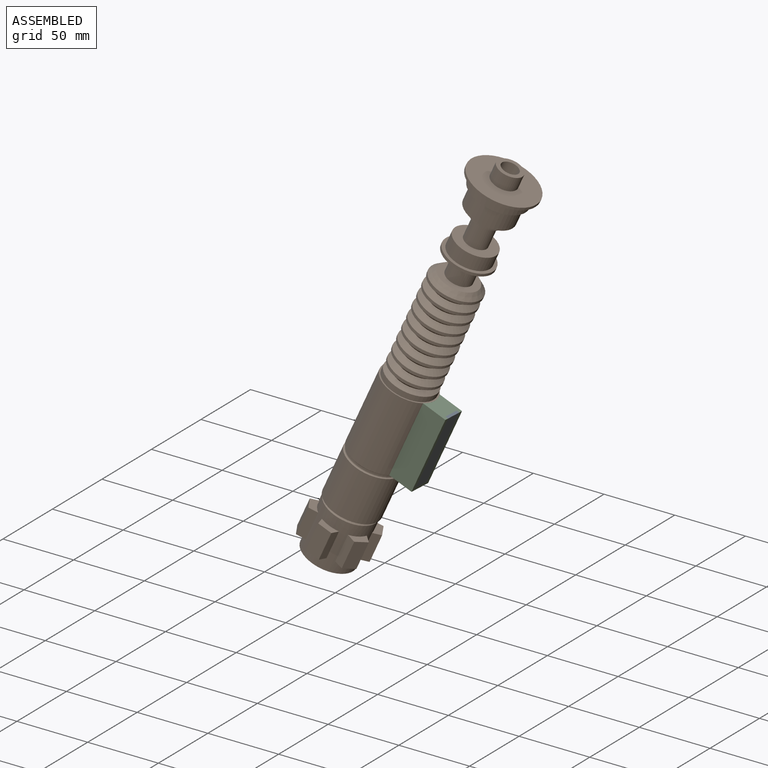
[diagram: assembled view]
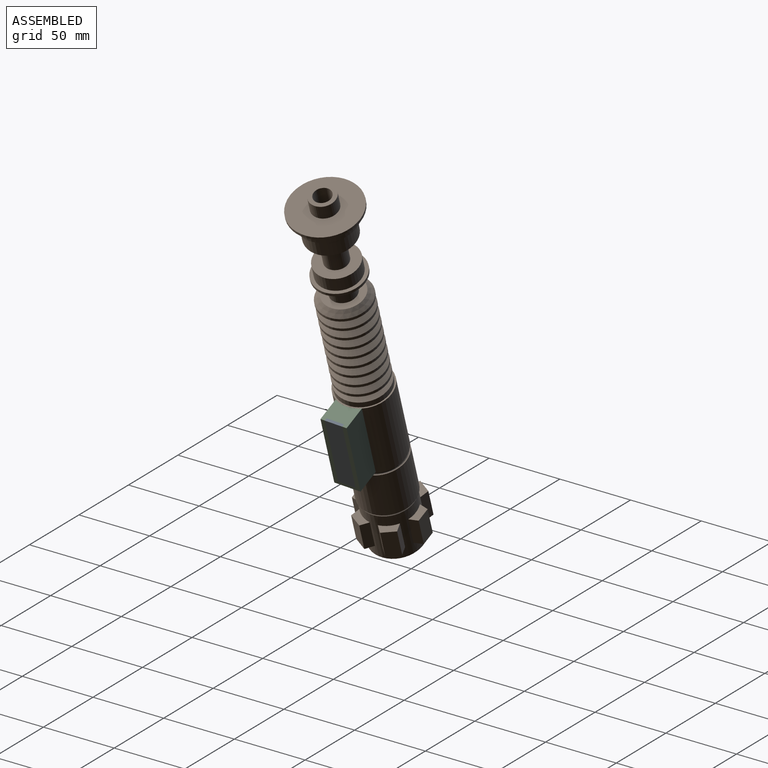
[diagram: assembled view, second angle]
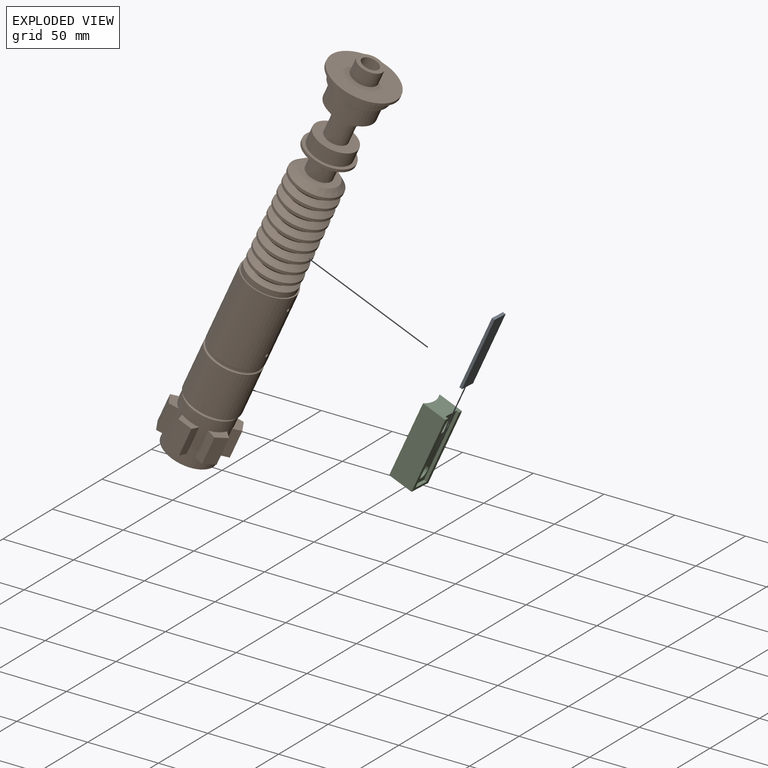
[diagram: exploded view]
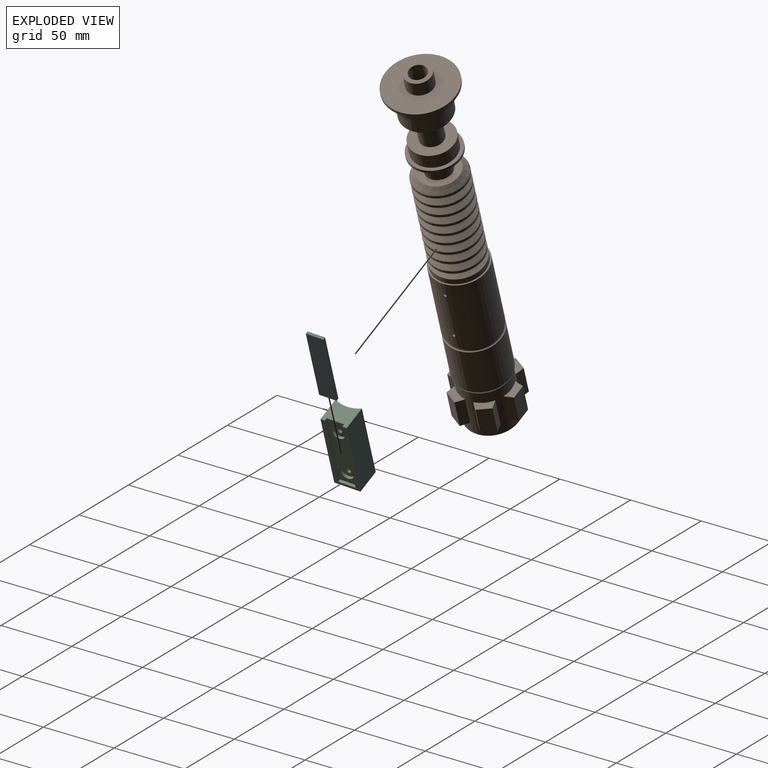
[diagram: exploded view, second angle]
ASSEMBLY  parts=3 mates=5
PART A: 6 faces, bbox 52x2x12 mm
  f0: plane 12x2mm, normal (-1,0,0), area 24mm2, adj f1,f3,f4,f5
  f1: plane 52x2mm, normal (0,0,1), area 104mm2, adj f0,f2,f4,f5
  f2: plane 12x2mm, normal (1,0,0), area 24mm2, adj f1,f3,f4,f5
  f3: plane 52x2mm, normal (0,0,-1), area 104mm2, adj f0,f2,f4,f5
  f4: plane 52x12mm, normal (0,1,0), area 624mm2, adj f0,f1,f2,f3
  f5: plane 52x12mm, normal (0,-1,0), area 624mm2, adj f0,f1,f2,f3
PART B: 96 faces, bbox 48x48x290 mm
  f0: torus R=19mm, axis (0,0,1), area 181.2mm2, adj f2,f5
  f1: torus R=19mm, axis (0,0,-1), area 181.2mm2, adj f5,f51
  f2: cylinder r=19mm len=38mm, axis (0,0,1), area 4058.9mm2, adj f0,f95
  f3: cone r=16mm half-angle=45deg, axis (0,0,-1), area 302.1mm2, adj f4,f95
  f4: cylinder r=18mm len=36mm, axis (0,0,1), area 2475.4mm2, adj f3,f70,f71,f72,f73,f74,f75,f76
  f5: cylinder r=18mm len=36mm, axis (0,0,1), area 113.1mm2, adj f0,f1
  f6: cylinder r=6mm len=34mm, axis (0,0,1), area 1281.8mm2, adj f7,f63
  f7: cone r=6mm half-angle=59deg, axis (0,0,1), area 131.9mm2, adj f6
  f8: cylinder r=1.25mm len=7.5mm, axis (1,0,0), area 58.9mm2, adj f9,f51
  f9: cone r=1.25mm half-angle=59deg, axis (1,0,0), area 5.7mm2, adj f8
  f10: cylinder r=1.25mm len=7.5mm, axis (1,0,0), area 58.9mm2, adj f11,f51
  f11: cone r=1.25mm half-angle=59deg, axis (1,0,0), area 5.7mm2, adj f10
  f12: cylinder r=9mm len=18mm, axis (0,0,1), area 565.5mm2, adj f62,f63
  f13: cylinder r=24mm len=48mm, axis (0,0,-1), area 301.6mm2, adj f61,f62
  f14: cylinder r=20mm len=40mm, axis (0,0,1), area 879.6mm2, adj f60,f61
  f15: cylinder r=17mm len=34mm, axis (0,0,1), area 1495.4mm2, adj f59,f60
  f16: cylinder r=11mm len=22mm, axis (0,0,1), area 345.6mm2, adj f58,f59
  f17: cylinder r=8mm len=17mm, axis (0,0,1), area 854.5mm2, adj f57,f58
  f18: cylinder r=15mm len=30mm, axis (0,0,1), area 942.5mm2, adj f56,f57
  f19: cylinder r=17.5mm len=35mm, axis (0,0,1), area 219.9mm2, adj f55,f56
  f20: cylinder r=11mm len=22mm, axis (0,0,1), area 138.2mm2, adj f54,f55
  f21: cylinder r=9mm len=18mm, axis (0,0,1), area 735.1mm2, adj f53,f54
  f22: cone r=14mm half-angle=45deg, axis (0,0,-1), area 568.7mm2, adj f23,f53
  f23: cylinder r=18mm len=36mm, axis (0,0,1), area 226.2mm2, adj f22,f24
  f24: cone r=18mm half-angle=53.1deg, axis (0,0,1), area 502.7mm2, adj f23,f25
  f25: cone r=14mm half-angle=53.1deg, axis (0,0,-1), area 502.7mm2, adj f24,f26
  f26: cylinder r=18mm len=36mm, axis (0,0,1), area 226.2mm2, adj f25,f27
  f27: cone r=18mm half-angle=53.1deg, axis (0,0,1), area 502.7mm2, adj f26,f28
  f28: cone r=14mm half-angle=53.1deg, axis (0,0,-1), area 502.7mm2, adj f27,f29
  f29: cylinder r=18mm len=36mm, axis (0,0,1), area 226.2mm2, adj f28,f30
  f30: cone r=18mm half-angle=53.1deg, axis (0,0,1), area 502.7mm2, adj f29,f31
  f31: cone r=14mm half-angle=53.1deg, axis (0,0,-1), area 502.7mm2, adj f30,f32
  f32: cylinder r=18mm len=36mm, axis (0,0,1), area 226.2mm2, adj f31,f33
  f33: cone r=18mm half-angle=53.1deg, axis (0,0,1), area 502.7mm2, adj f32,f34
  f34: cone r=14mm half-angle=53.1deg, axis (0,0,-1), area 502.7mm2, adj f33,f35
  f35: cylinder r=18mm len=36mm, axis (0,0,1), area 226.2mm2, adj f34,f36
  f36: cone r=18mm half-angle=53.1deg, axis (0,0,1), area 502.7mm2, adj f35,f37
  f37: cone r=14mm half-angle=53.1deg, axis (0,0,-1), area 502.7mm2, adj f36,f38
  f38: cylinder r=18mm len=36mm, axis (0,0,1), area 226.2mm2, adj f37,f39
  f39: cone r=18mm half-angle=53.1deg, axis (0,0,1), area 502.7mm2, adj f38,f40
  f40: cone r=14mm half-angle=53.1deg, axis (0,0,-1), area 502.7mm2, adj f39,f41
  f41: cylinder r=18mm len=36mm, axis (0,0,1), area 226.2mm2, adj f40,f42
  f42: cone r=18mm half-angle=53.1deg, axis (0,0,1), area 502.7mm2, adj f41,f43
  f43: cone r=14mm half-angle=53.1deg, axis (0,0,-1), area 502.7mm2, adj f42,f44
  f44: cylinder r=18mm len=36mm, axis (0,0,1), area 226.2mm2, adj f43,f45
  f45: cone r=18mm half-angle=53.1deg, axis (0,0,1), area 502.7mm2, adj f44,f46
  f46: cone r=14mm half-angle=53.1deg, axis (0,0,-1), area 502.7mm2, adj f45,f47
  f47: cylinder r=18mm len=36mm, axis (0,0,1), area 226.2mm2, adj f46,f48
  f48: cone r=18mm half-angle=53.1deg, axis (0,0,1), area 502.7mm2, adj f47,f49
  f49: cone r=14mm half-angle=63.4deg, axis (0,0,-1), area 449.6mm2, adj f48,f50
  f50: cylinder r=18mm len=36mm, axis (0,0,1), area 452.4mm2, adj f49,f52
  f51: cylinder r=19mm len=54mm, axis (0,0,1), area 6436.8mm2, adj f1,f8,f10,f52
  f52: plane 38x38mm, normal (0,0,1), area 116.2mm2, adj f50,f51
  f53: plane 28x28mm, normal (0,0,1), area 361.3mm2, adj f21,f22
  f54: plane 22x22mm, normal (0,0,-1), area 125.7mm2, adj f20,f21
  f55: plane 35x35mm, normal (0,0,-1), area 582mm2, adj f19,f20
  f56: plane 35x35mm, normal (0,0,1), area 255.3mm2, adj f18,f19
  f57: plane 30x30mm, normal (0,0,1), area 505.8mm2, adj f17,f18
  f58: plane 22x22mm, normal (0,0,-1), area 179.1mm2, adj f16,f17
  f59: plane 34x34mm, normal (0,0,-1), area 527.8mm2, adj f15,f16
  f60: plane 40x40mm, normal (0,0,-1), area 348.7mm2, adj f14,f15
  f61: plane 48x48mm, normal (0,0,-1), area 552.9mm2, adj f13,f14
  f62: plane 48x48mm, normal (0,0,1), area 1555.1mm2, adj f12,f13
  f63: plane 18x18mm, normal (0,0,1), area 141.4mm2, adj f6,f12
  f64: plane 20x8.66mm, normal (0.87,-0.5,0), area 200mm2, adj f70,f71,f72,f73
  f65: plane 20x8.66mm, normal (0.87,0.5,0), area 200mm2, adj f75,f76,f77,f78
  f66: plane 20x10mm, normal (0,1,0), area 200mm2, adj f79,f80,f81,f82
  f67: plane 20x8.66mm, normal (-0.87,0.5,0), area 200mm2, adj f83,f84,f85,f86
  f68: plane 20x8.66mm, normal (-0.87,-0.5,0), area 200mm2, adj f87,f88,f89,f90
  f69: plane 20x10mm, normal (0,-1,0), area 200mm2, adj f91,f92,f93,f94
  f70: plane 20x4.63mm, normal (0.69,0.72,0), area 127.9mm2, adj f4,f64,f71,f73
  f71: plane 13.07x11.13mm, normal (0,0,1), area 60.9mm2, adj f4,f64,f70,f72
  f72: plane 20x6.13mm, normal (-0.28,-0.96,0), area 127.9mm2, adj f4,f64,f71,f73
  f73: plane 13.07x11.13mm, normal (0,0,-1), area 60.9mm2, adj f4,f64,f70,f72
  f74: plane 36x36mm, normal (0,0,-1), area 1017.9mm2, adj f4
  f75: plane 13.07x11.13mm, normal (0,0,-1), area 60.9mm2, adj f4,f65,f76,f78
  f76: plane 20x6.13mm, normal (-0.28,0.96,0), area 127.9mm2, adj f4,f65,f75,f77
  f77: plane 13.07x11.13mm, normal (0,0,1), area 60.9mm2, adj f4,f65,f76,f78
  f78: plane 20x4.63mm, normal (0.69,-0.72,0), area 127.9mm2, adj f4,f65,f75,f77
  f79: plane 13x6.21mm, normal (0,0,-1), area 60.9mm2, adj f4,f66,f80,f82
  f80: plane 20x6.21mm, normal (-0.97,0.23,0), area 127.9mm2, adj f4,f66,f79,f81
  f81: plane 13x6.21mm, normal (0,0,1), area 60.9mm2, adj f4,f66,f80,f82
  f82: plane 20x6.21mm, normal (0.97,0.23,0), area 127.9mm2, adj f4,f66,f79,f81
  f83: plane 13.07x11.13mm, normal (0,0,-1), area 60.9mm2, adj f4,f67,f84,f86
  f84: plane 20x4.63mm, normal (-0.69,-0.72,0), area 127.9mm2, adj f4,f67,f83,f85
  f85: plane 13.07x11.13mm, normal (0,0,1), area 60.9mm2, adj f4,f67,f84,f86
  f86: plane 20x6.13mm, normal (0.28,0.96,0), area 127.9mm2, adj f4,f67,f83,f85
  f87: plane 13.07x11.13mm, normal (0,0,-1), area 60.9mm2, adj f4,f68,f88,f90
  f88: plane 20x6.13mm, normal (0.28,-0.96,0), area 127.9mm2, adj f4,f68,f87,f89
  f89: plane 13.07x11.13mm, normal (0,0,1), area 60.9mm2, adj f4,f68,f88,f90
  f90: plane 20x4.63mm, normal (-0.69,0.72,0), area 127.9mm2, adj f4,f68,f87,f89
  f91: plane 13x6.21mm, normal (0,0,-1), area 60.9mm2, adj f4,f69,f92,f94
  f92: plane 20x6.21mm, normal (0.97,-0.23,0), area 127.9mm2, adj f4,f69,f91,f93
  f93: plane 13x6.21mm, normal (0,0,1), area 60.9mm2, adj f4,f69,f92,f94
  f94: plane 20x6.21mm, normal (-0.97,-0.23,0), area 127.9mm2, adj f4,f69,f91,f93
  f95: plane 38x38mm, normal (0,0,-1), area 329.9mm2, adj f2,f3
PART C: 16 faces, bbox 54x17x18 mm
  f0: cylinder r=4.68mm len=9.35mm, axis (0,1,0), area 58.8mm2, adj f13,f15
  f1: cylinder r=1.7mm len=10.81mm, axis (0,1,0), area 115.5mm2, adj f9,f15
  f2: cylinder r=4.68mm len=9.35mm, axis (0,1,0), area 58.8mm2, adj f13,f14
  f3: cylinder r=1.7mm len=10.81mm, axis (0,1,0), area 115.5mm2, adj f9,f14
  f4: plane 18x17mm, normal (-1,0,0), area 254.5mm2, adj f5,f7,f8,f9,f10,f12,f13
  f5: plane 54x17mm, normal (0,0,1), area 918mm2, adj f4,f6,f8,f9
  f6: plane 18x17mm, normal (1,0,0), area 278.5mm2, adj f5,f7,f8,f9
  f7: plane 54x17mm, normal (0,0,-1), area 918mm2, adj f4,f6,f8,f9
  f8: plane 54x18mm, normal (0,1,0), area 348mm2, adj f4,f5,f6,f7,f10,f11,f12
  f9: cylinder r=19mm len=54mm, axis (1,0,0), area 994.4mm2, adj f1,f3,f4,f5,f6,f7
  f10: plane 52x2mm, normal (0,0,1), area 104mm2, adj f4,f8,f11,f13
  f11: plane 12x2mm, normal (-1,0,0), area 24mm2, adj f8,f10,f12,f13
  f12: plane 52x2mm, normal (0,0,-1), area 104mm2, adj f4,f8,f11,f13
  f13: plane 52x12mm, normal (0,1,0), area 486.6mm2, adj f0,f2,f4,f10,f11,f12
  f14: plane 9.35x9.35mm, normal (0,1,0), area 59.6mm2, adj f2,f3
  f15: plane 9.35x9.35mm, normal (0,1,0), area 59.6mm2, adj f0,f1
PLACE A rot(axis=(-0.73,-0.51,-0.44),109.9deg) t=(-2.25,-10.49,74.07)mm
PLACE B rot(axis=(-0.21,0.98,0.07),23.2deg) t=(-70.95,-19.75,-8.46)mm
PLACE C rot(axis=(0.4,0.63,-0.66),130.4deg) t=(-16.47,-10.74,78.92)mm
MATE slider C.f0 <-> B.f8  axis (0.92,0.01,-0.38) through (2.03,-9.13,89.56)mm
MATE planar A.f0 <-> C.f11  axis (-0.38,-0.09,-0.92) through (-11.27,-12.72,49.77)mm
MATE planar A.f3 <-> C.f12  axis (0.04,-1,0.08) through (-1.06,-16.45,74.14)mm
MATE planar A.f5 <-> C.f13  axis (-0.92,-0.01,0.38) through (-2.25,-10.49,74.07)mm
MATE cylindrical B.f2 <-> C.f9  axis (0.38,0.09,0.92) through (-31.91,-10.93,85.37)mm
